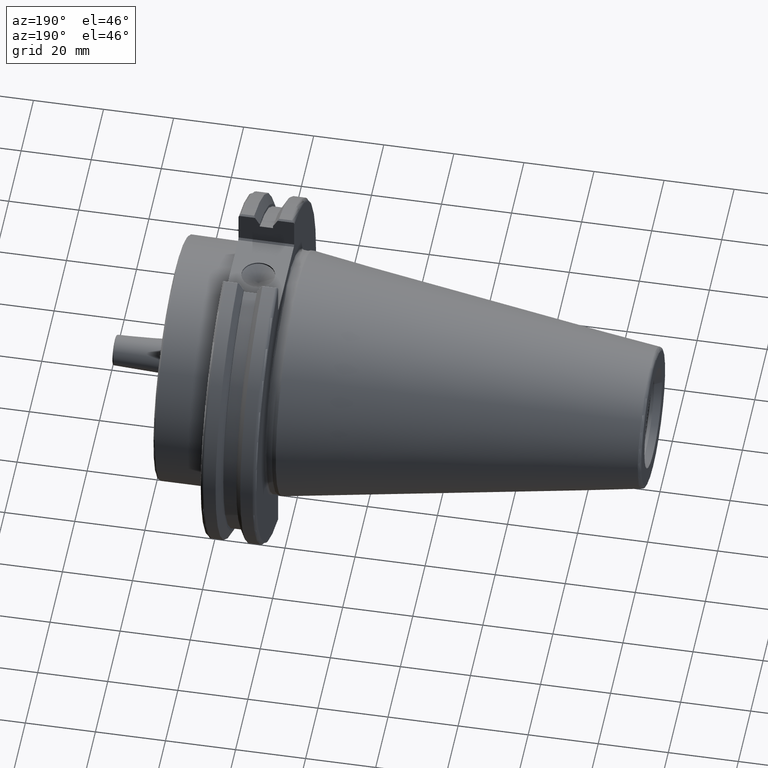
[diagram: clean part render]
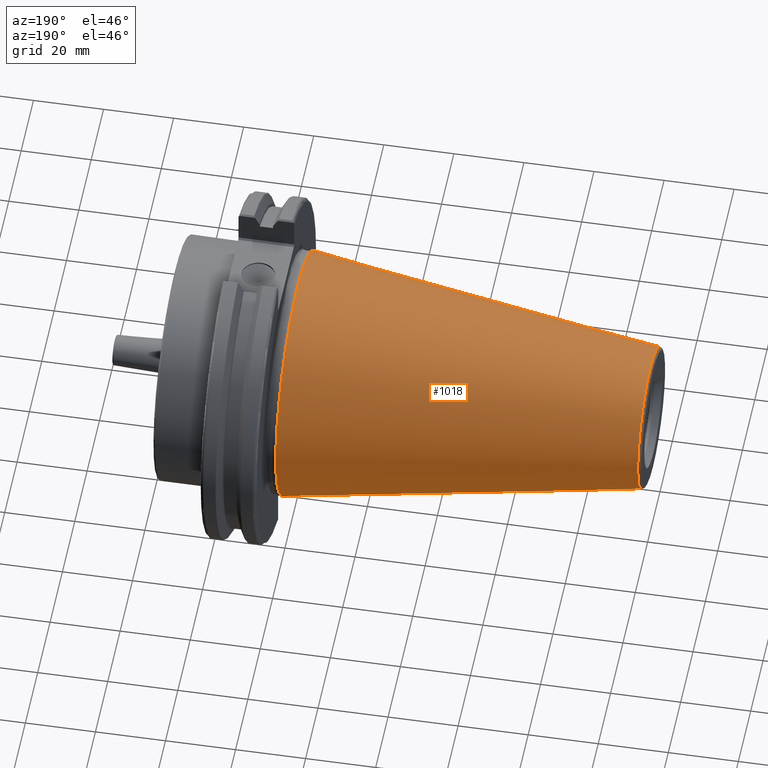
[diagram: same view with one face highlighted and labeled with its STEP entity id]
A machine part, auxiliary view. The second image highlights one B-rep face of the part: STEP entity #1018.
In plain terms, the highlighted conical surface has half-angle 8.297 deg.
Its self-contained STEP definition (entity closure, byte-faithful):
#50=CONICAL_SURFACE('',#1137,27.5166666666666,0.14481249823894);
#130=FACE_OUTER_BOUND('',#194,.T.);
#194=EDGE_LOOP('',(#838,#839,#840,#841,#842));
#276=LINE('',#1824,#345);
#345=VECTOR('',#1369,27.5166666666666);
#396=CIRCLE('',#1131,20.233121911427);
#397=CIRCLE('',#1132,20.233121911427);
#401=CIRCLE('',#1138,34.925);
#498=VERTEX_POINT('',#1811);
#499=VERTEX_POINT('',#1812);
#502=VERTEX_POINT('',#1822);
#624=EDGE_CURVE('',#498,#499,#396,.T.);
#625=EDGE_CURVE('',#499,#498,#397,.T.);
#629=EDGE_CURVE('',#502,#502,#401,.T.);
#630=EDGE_CURVE('',#502,#499,#276,.T.);
#838=ORIENTED_EDGE('',*,*,#629,.F.);
#839=ORIENTED_EDGE('',*,*,#630,.T.);
#840=ORIENTED_EDGE('',*,*,#624,.F.);
#841=ORIENTED_EDGE('',*,*,#625,.F.);
#842=ORIENTED_EDGE('',*,*,#630,.F.);
#1018=ADVANCED_FACE('',(#130),#50,.T.);
#1131=AXIS2_PLACEMENT_3D('',#1813,#1353,#1354);
#1132=AXIS2_PLACEMENT_3D('',#1814,#1355,#1356);
#1137=AXIS2_PLACEMENT_3D('',#1821,#1365,#1366);
#1138=AXIS2_PLACEMENT_3D('',#1823,#1367,#1368);
#1353=DIRECTION('center_axis',(-1.,0.,0.));
#1354=DIRECTION('ref_axis',(0.,-1.,3.06161699786838E-17));
#1355=DIRECTION('center_axis',(-1.,0.,0.));
#1356=DIRECTION('ref_axis',(0.,-1.,3.06161699786838E-17));
#1365=DIRECTION('center_axis',(1.,0.,0.));
#1366=DIRECTION('ref_axis',(0.,1.,0.));
#1367=DIRECTION('center_axis',(1.,0.,0.));
#1368=DIRECTION('ref_axis',(0.,0.,-1.));
#1369=DIRECTION('',(-0.989532981063281,0.144306893071729,1.76724974695192E-17));
#1811=CARTESIAN_POINT('',(-100.744306893072,-2.47784279855872E-15,20.233121911427));
#1812=CARTESIAN_POINT('',(-100.744306893072,-20.233121911427,-2.47784279855872E-15));
#1813=CARTESIAN_POINT('Origin',(-100.744306893072,0.,-3.09730349819841E-15));
#1814=CARTESIAN_POINT('Origin',(-100.744306893072,0.,-3.09730349819841E-15));
#1821=CARTESIAN_POINT('Origin',(-50.8,0.,0.));
#1822=CARTESIAN_POINT('',(-8.88178419700125E-15,-34.925,-4.27707894602213E-15));
#1823=CARTESIAN_POINT('Origin',(0.,0.,0.));
#1824=CARTESIAN_POINT('',(-50.8,-27.5166666666666,-3.3698197756538E-15));